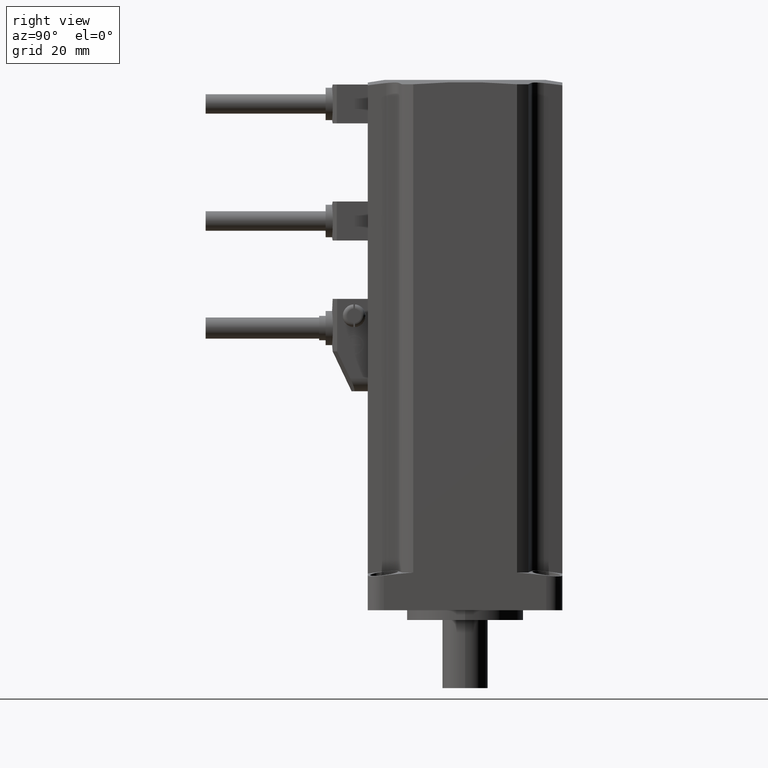
[diagram: clean part render]
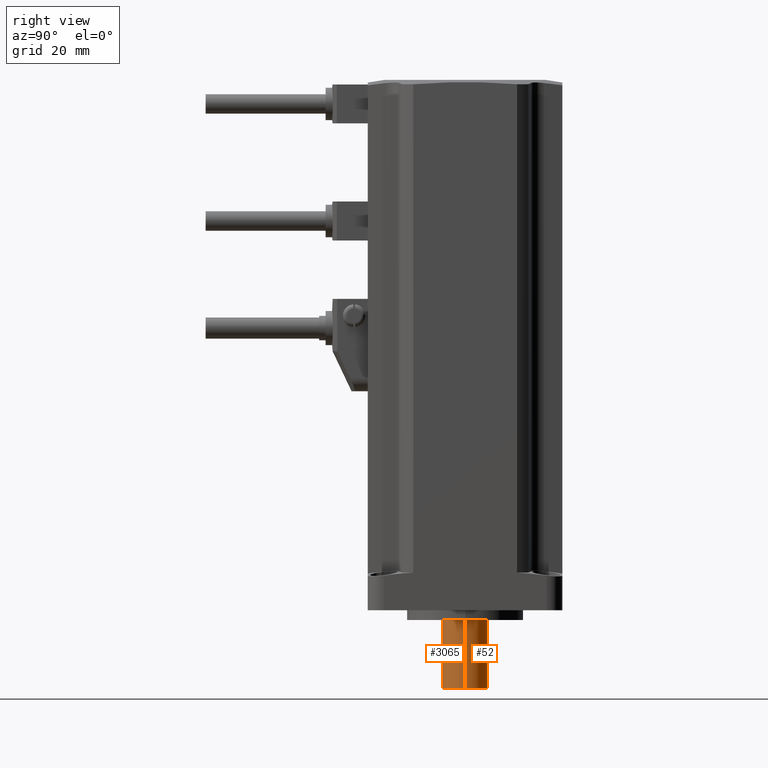
[diagram: same view with one multi-face feature highlighted, each face labeled with its STEP entity id]
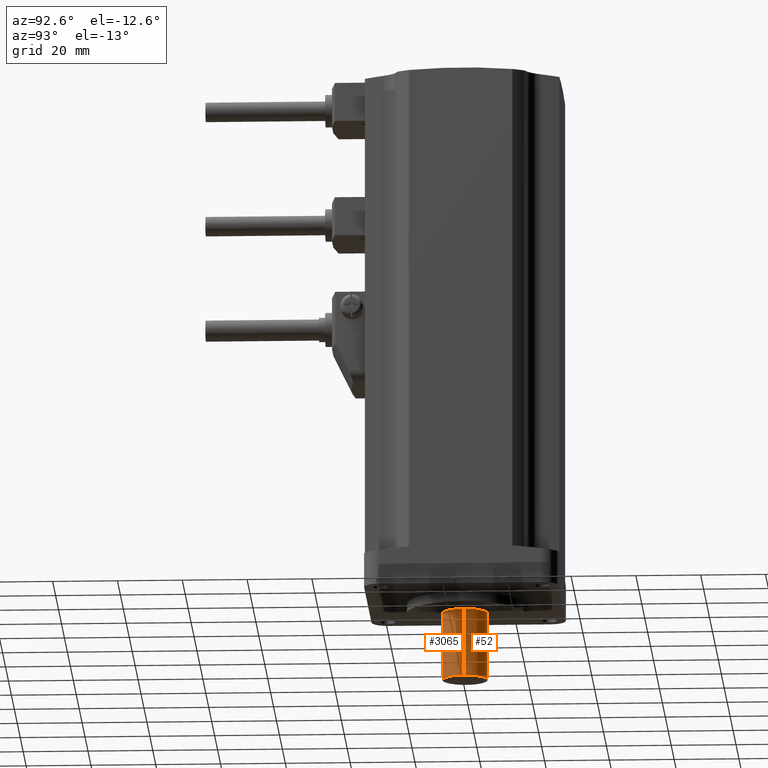
[diagram: same view with one multi-face feature highlighted, each face labeled with its STEP entity id]
A machine part, right view. The highlighted faces form ONE feature: a constant-radius fillet chain: 2 tangent blend faces with common blend radius 7 mm. The faces share edges in the B-rep.
A second angle (auxiliary view) of the same feature is appended — it is thin or edge-on in the first view.
Their STEP definitions:
[1] entity #3065 (Cylinder):
#127 = ORIENTED_EDGE ( 'NONE', *, *, #3584, .T. ) ;
#361 = CARTESIAN_POINT ( 'NONE',  ( 0.0000000000000000000, 0.0000000000000000000, -3.000000000000000000 ) ) ;
#366 = DIRECTION ( 'NONE',  ( -1.000000000000000000, 0.0000000000000000000, 0.0000000000000000000 ) ) ;
#520 = DIRECTION ( 'NONE',  ( -0.0000000000000000000, -0.0000000000000000000, -1.000000000000000000 ) ) ;
#545 = CARTESIAN_POINT ( 'NONE',  ( 0.0000000000000000000, 0.0000000000000000000, -24.00000000000000000 ) ) ;
#615 = CARTESIAN_POINT ( 'NONE',  ( 7.000000000000000000, 8.572527594031473190E-16, 0.0000000000000000000 ) ) ;
#844 = VERTEX_POINT ( 'NONE', #5045 ) ;
#962 = LINE ( 'NONE', #2572, #3754 ) ;
#1076 = ORIENTED_EDGE ( 'NONE', *, *, #4625, .F. ) ;
#1188 = VERTEX_POINT ( 'NONE', #2297 ) ;
#1452 = CIRCLE ( 'NONE', #4113, 7.000000000000000000 ) ;
#1531 = DIRECTION ( 'NONE',  ( -0.0000000000000000000, -0.0000000000000000000, -1.000000000000000000 ) ) ;
#1605 = CARTESIAN_POINT ( 'NONE',  ( 0.0000000000000000000, 0.0000000000000000000, 0.0000000000000000000 ) ) ;
#1687 = DIRECTION ( 'NONE',  ( -1.000000000000000000, 0.0000000000000000000, 0.0000000000000000000 ) ) ;
#1736 = DIRECTION ( 'NONE',  ( -0.0000000000000000000, -0.0000000000000000000, -1.000000000000000000 ) ) ;
#1771 = ORIENTED_EDGE ( 'NONE', *, *, #4786, .T. ) ;
#1940 = DIRECTION ( 'NONE',  ( -0.0000000000000000000, -0.0000000000000000000, -1.000000000000000000 ) ) ;
#2014 = FACE_OUTER_BOUND ( 'NONE', #2079, .T. ) ;
#2079 = EDGE_LOOP ( 'NONE', ( #3939, #1771, #127, #1076 ) ) ;
#2081 = VECTOR ( 'NONE', #3277, 1000.000000000000000 ) ;
#2297 = CARTESIAN_POINT ( 'NONE',  ( 7.000000000000000000, 8.572527594031473190E-16, -3.000000000000000000 ) ) ;
#2307 = VERTEX_POINT ( 'NONE', #3964 ) ;
#2342 = CARTESIAN_POINT ( 'NONE',  ( -7.000000000000000000, 0.0000000000000000000, -24.00000000000000000 ) ) ;
#2349 = CIRCLE ( 'NONE', #3679, 7.000000000000000000 ) ;
#2359 = DIRECTION ( 'NONE',  ( -1.000000000000000000, 0.0000000000000000000, 0.0000000000000000000 ) ) ;
#2572 = CARTESIAN_POINT ( 'NONE',  ( -7.000000000000000000, 0.0000000000000000000, 0.0000000000000000000 ) ) ;
#3056 = VERTEX_POINT ( 'NONE', #2342 ) ;
#3065 = ADVANCED_FACE ( 'NONE', ( #2014 ), #3561, .T. ) ;
#3241 = EDGE_CURVE ( 'NONE', #1188, #844, #3250, .T. ) ;
#3250 = LINE ( 'NONE', #615, #2081 ) ;
#3277 = DIRECTION ( 'NONE',  ( -0.0000000000000000000, -0.0000000000000000000, -1.000000000000000000 ) ) ;
#3561 = CYLINDRICAL_SURFACE ( 'NONE', #4557, 7.000000000000000000 ) ;
#3584 = EDGE_CURVE ( 'NONE', #2307, #3056, #962, .T. ) ;
#3679 = AXIS2_PLACEMENT_3D ( 'NONE', #545, #520, #1687 ) ;
#3754 = VECTOR ( 'NONE', #1736, 1000.000000000000000 ) ;
#3939 = ORIENTED_EDGE ( 'NONE', *, *, #3241, .F. ) ;
#3964 = CARTESIAN_POINT ( 'NONE',  ( -7.000000000000000000, 0.0000000000000000000, -3.000000000000000000 ) ) ;
#4113 = AXIS2_PLACEMENT_3D ( 'NONE', #361, #1940, #2359 ) ;
#4557 = AXIS2_PLACEMENT_3D ( 'NONE', #1605, #1531, #366 ) ;
#4625 = EDGE_CURVE ( 'NONE', #844, #3056, #2349, .T. ) ;
#4786 = EDGE_CURVE ( 'NONE', #1188, #2307, #1452, .T. ) ;
#5045 = CARTESIAN_POINT ( 'NONE',  ( 7.000000000000000000, 8.572527594031473190E-16, -24.00000000000000000 ) ) ;
[2] entity #52 (Cylinder):
#52 = ADVANCED_FACE ( 'NONE', ( #4831 ), #1777, .T. ) ;
#346 = AXIS2_PLACEMENT_3D ( 'NONE', #3368, #4606, #4519 ) ;
#422 = DIRECTION ( 'NONE',  ( -0.0000000000000000000, -0.0000000000000000000, -1.000000000000000000 ) ) ;
#615 = CARTESIAN_POINT ( 'NONE',  ( 7.000000000000000000, 8.572527594031473190E-16, 0.0000000000000000000 ) ) ;
#844 = VERTEX_POINT ( 'NONE', #5045 ) ;
#962 = LINE ( 'NONE', #2572, #3754 ) ;
#969 = CIRCLE ( 'NONE', #3954, 7.000000000000000000 ) ;
#974 = ORIENTED_EDGE ( 'NONE', *, *, #3241, .T. ) ;
#1035 = EDGE_CURVE ( 'NONE', #3056, #844, #1319, .T. ) ;
#1165 = DIRECTION ( 'NONE',  ( -0.0000000000000000000, -0.0000000000000000000, -1.000000000000000000 ) ) ;
#1188 = VERTEX_POINT ( 'NONE', #2297 ) ;
#1235 = AXIS2_PLACEMENT_3D ( 'NONE', #2769, #422, #1615 ) ;
#1319 = CIRCLE ( 'NONE', #1235, 7.000000000000000000 ) ;
#1615 = DIRECTION ( 'NONE',  ( -1.000000000000000000, 0.0000000000000000000, 0.0000000000000000000 ) ) ;
#1736 = DIRECTION ( 'NONE',  ( -0.0000000000000000000, -0.0000000000000000000, -1.000000000000000000 ) ) ;
#1777 = CYLINDRICAL_SURFACE ( 'NONE', #346, 7.000000000000000000 ) ;
#2081 = VECTOR ( 'NONE', #3277, 1000.000000000000000 ) ;
#2208 = ORIENTED_EDGE ( 'NONE', *, *, #2220, .T. ) ;
#2220 = EDGE_CURVE ( 'NONE', #2307, #1188, #969, .T. ) ;
#2297 = CARTESIAN_POINT ( 'NONE',  ( 7.000000000000000000, 8.572527594031473190E-16, -3.000000000000000000 ) ) ;
#2307 = VERTEX_POINT ( 'NONE', #3964 ) ;
#2342 = CARTESIAN_POINT ( 'NONE',  ( -7.000000000000000000, 0.0000000000000000000, -24.00000000000000000 ) ) ;
#2572 = CARTESIAN_POINT ( 'NONE',  ( -7.000000000000000000, 0.0000000000000000000, 0.0000000000000000000 ) ) ;
#2629 = ORIENTED_EDGE ( 'NONE', *, *, #3584, .F. ) ;
#2750 = DIRECTION ( 'NONE',  ( -1.000000000000000000, 0.0000000000000000000, 0.0000000000000000000 ) ) ;
#2769 = CARTESIAN_POINT ( 'NONE',  ( 0.0000000000000000000, 0.0000000000000000000, -24.00000000000000000 ) ) ;
#3056 = VERTEX_POINT ( 'NONE', #2342 ) ;
#3072 = EDGE_LOOP ( 'NONE', ( #2208, #974, #4238, #2629 ) ) ;
#3241 = EDGE_CURVE ( 'NONE', #1188, #844, #3250, .T. ) ;
#3250 = LINE ( 'NONE', #615, #2081 ) ;
#3277 = DIRECTION ( 'NONE',  ( -0.0000000000000000000, -0.0000000000000000000, -1.000000000000000000 ) ) ;
#3368 = CARTESIAN_POINT ( 'NONE',  ( 0.0000000000000000000, 0.0000000000000000000, 0.0000000000000000000 ) ) ;
#3482 = CARTESIAN_POINT ( 'NONE',  ( 0.0000000000000000000, 0.0000000000000000000, -3.000000000000000000 ) ) ;
#3584 = EDGE_CURVE ( 'NONE', #2307, #3056, #962, .T. ) ;
#3754 = VECTOR ( 'NONE', #1736, 1000.000000000000000 ) ;
#3954 = AXIS2_PLACEMENT_3D ( 'NONE', #3482, #1165, #2750 ) ;
#3964 = CARTESIAN_POINT ( 'NONE',  ( -7.000000000000000000, 0.0000000000000000000, -3.000000000000000000 ) ) ;
#4238 = ORIENTED_EDGE ( 'NONE', *, *, #1035, .F. ) ;
#4519 = DIRECTION ( 'NONE',  ( -1.000000000000000000, 0.0000000000000000000, 0.0000000000000000000 ) ) ;
#4606 = DIRECTION ( 'NONE',  ( -0.0000000000000000000, -0.0000000000000000000, -1.000000000000000000 ) ) ;
#4831 = FACE_OUTER_BOUND ( 'NONE', #3072, .T. ) ;
#5045 = CARTESIAN_POINT ( 'NONE',  ( 7.000000000000000000, 8.572527594031473190E-16, -24.00000000000000000 ) ) ;